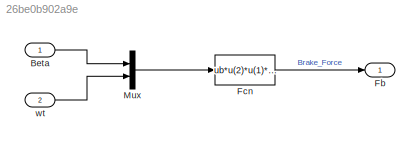
MODEL slx_26be0b902a9e
KIND model
WORKSPACE source: external: MAT-File  (data not in archive)
BLOCK [Inport] Beta
  IconDisplay = Port number
BLOCK [Outport] Fb
  IconDisplay = Port number
BLOCK [Fcn] Fcn
  Expr = ub*u(2)*u(1)*kb
BLOCK [Mux] Mux
  DisplayOption = bar
  Inputs = 2
  Ports = [2, 1]
BLOCK [Inport] wt
  IconDisplay = Port number
  Port = 2
LINE Beta:1 -> Mux:1
LINE Fcn:1 -> Fb:1
LINE Mux:1 -> Fcn:1
LINE wt:1 -> Mux:2
